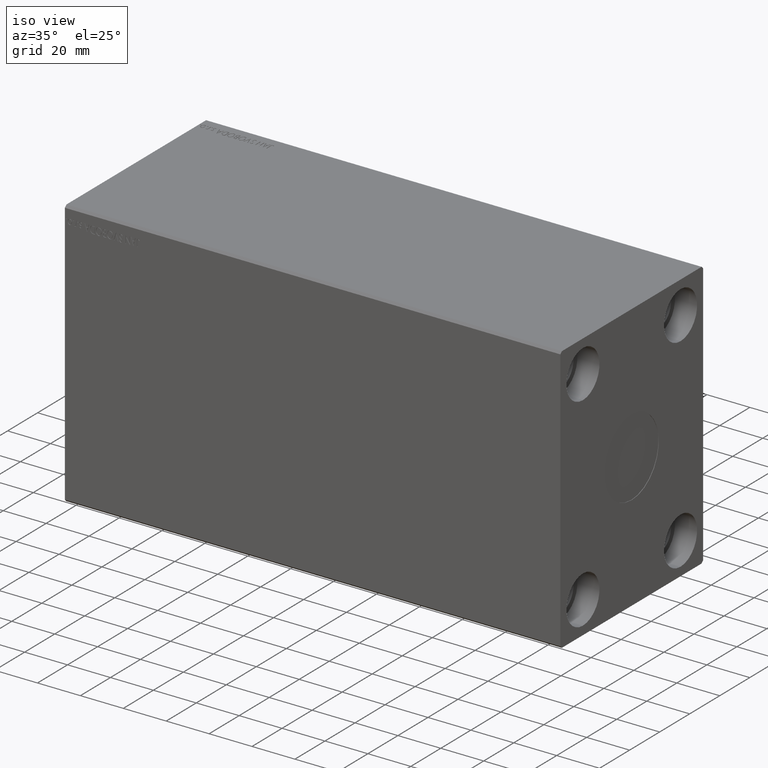
[diagram: clean part render]
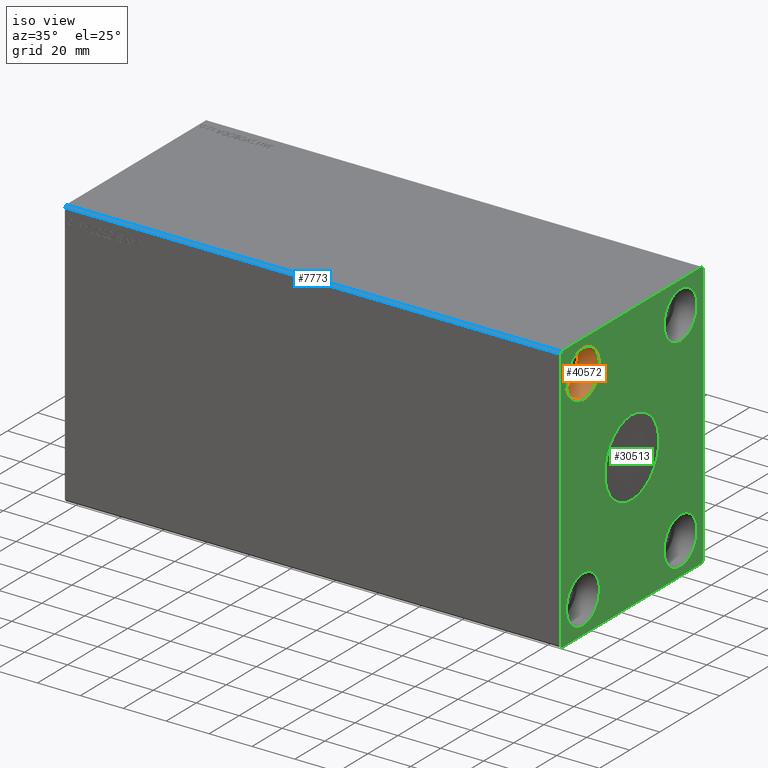
[diagram: same view with three faces highlighted in distinct colors, each labeled with its STEP entity id]
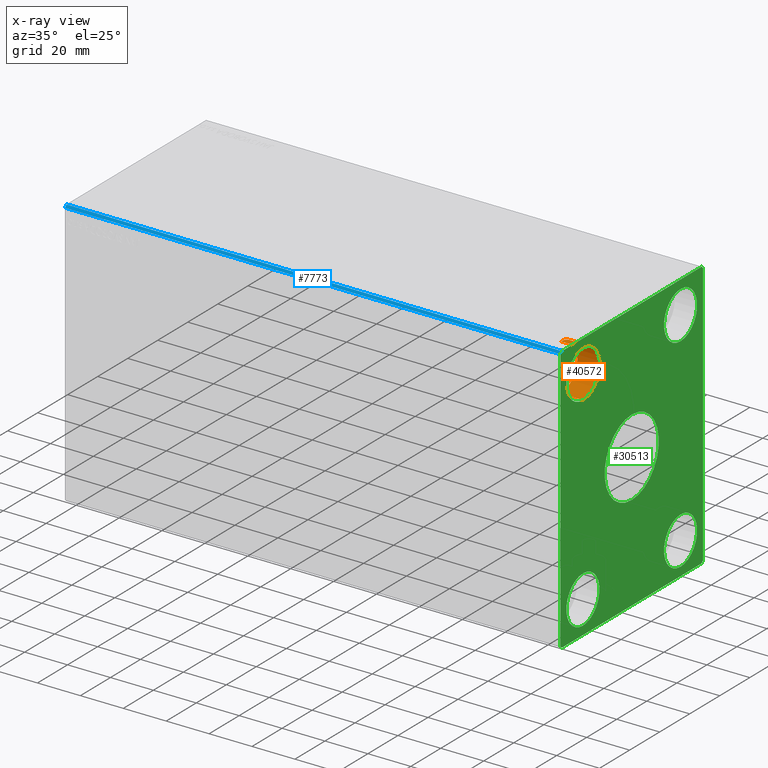
[diagram: x-ray of the same camera — body ghosted, the three highlighted faces saturated]
A machine part, iso view with three faces highlighted in distinct colors.
The next image is the same camera in x-ray (body ghosted, the three faces saturated) — at least one of them is partly hidden behind the body in this view.
Their STEP definitions:

[orange] entity #40572 — the highlighted cylindrical surface (edge-blend (fillet) strip) has radius 11 mm, axis along (1, -0, -0).
#1955 = CARTESIAN_POINT ( 'NONE',  ( 220.6700000000000159, -32.50000000000000000, 47.50000000000000000 ) ) ;
#4401 = FACE_OUTER_BOUND ( 'NONE', #6101, .T. ) ;
#4961 = DIRECTION ( 'NONE',  ( 0.000000000000000000, 0.000000000000000000, 1.000000000000000000 ) ) ;
#6101 = EDGE_LOOP ( 'NONE', ( #29551, #19099, #8860, #25247 ) ) ;
#6989 = EDGE_CURVE ( 'NONE', #38404, #13870, #34838, .T. ) ;
#7012 = VECTOR ( 'NONE', #30645, 1000.000000000000000 ) ;
#7655 = EDGE_CURVE ( 'NONE', #16951, #13870, #16601, .T. ) ;
#8728 = LINE ( 'NONE', #21830, #30640 ) ;
#8860 = ORIENTED_EDGE ( 'NONE', *, *, #6989, .T. ) ;
#10311 = CARTESIAN_POINT ( 'NONE',  ( 231.0000000000000000, -32.50000000000000000, 58.50000000000000000 ) ) ;
#12753 = CARTESIAN_POINT ( 'NONE',  ( 220.6700000000000159, -32.50000000000000000, 47.50000000000000000 ) ) ;
#13162 = DIRECTION ( 'NONE',  ( 0.000000000000000000, 0.000000000000000000, 1.000000000000000000 ) ) ;
#13870 = VERTEX_POINT ( 'NONE', #18405 ) ;
#16601 = CIRCLE ( 'NONE', #17323, 10.99999999999999645 ) ;
#16951 = VERTEX_POINT ( 'NONE', #10311 ) ;
#17323 = AXIS2_PLACEMENT_3D ( 'NONE', #20658, #33768, #13162 ) ;
#18405 = CARTESIAN_POINT ( 'NONE',  ( 231.0000000000000000, -32.50000000000000000, 36.50000000000000711 ) ) ;
#19099 = ORIENTED_EDGE ( 'NONE', *, *, #39743, .T. ) ;
#20658 = CARTESIAN_POINT ( 'NONE',  ( 231.0000000000000000, -32.50000000000000000, 47.50000000000000000 ) ) ;
#21830 = CARTESIAN_POINT ( 'NONE',  ( 220.6700000000000159, -32.50000000000000000, 58.50000000000000000 ) ) ;
#24839 = EDGE_CURVE ( 'NONE', #39499, #16951, #8728, .T. ) ;
#25247 = ORIENTED_EDGE ( 'NONE', *, *, #7655, .F. ) ;
#25477 = DIRECTION ( 'NONE',  ( 1.000000000000000000, -0.000000000000000000, -0.000000000000000000 ) ) ;
#28450 = DIRECTION ( 'NONE',  ( 1.000000000000000000, -0.000000000000000000, -0.000000000000000000 ) ) ;
#29467 = CARTESIAN_POINT ( 'NONE',  ( 220.6700000000000159, -32.50000000000000000, 58.50000000000000000 ) ) ;
#29551 = ORIENTED_EDGE ( 'NONE', *, *, #24839, .F. ) ;
#29641 = CARTESIAN_POINT ( 'NONE',  ( 220.6700000000000159, -32.50000000000000000, 36.50000000000000711 ) ) ;
#30640 = VECTOR ( 'NONE', #25477, 1000.000000000000000 ) ;
#30645 = DIRECTION ( 'NONE',  ( 1.000000000000000000, -0.000000000000000000, -0.000000000000000000 ) ) ;
#30781 = AXIS2_PLACEMENT_3D ( 'NONE', #1955, #34606, #4961 ) ;
#33417 = CARTESIAN_POINT ( 'NONE',  ( 220.6700000000000159, -32.50000000000000000, 36.50000000000000711 ) ) ;
#33545 = CIRCLE ( 'NONE', #30781, 10.99999999999999645 ) ;
#33768 = DIRECTION ( 'NONE',  ( -1.000000000000000000, -0.000000000000000000, -0.000000000000000000 ) ) ;
#34606 = DIRECTION ( 'NONE',  ( -1.000000000000000000, -0.000000000000000000, -0.000000000000000000 ) ) ;
#34838 = LINE ( 'NONE', #29641, #7012 ) ;
#38404 = VERTEX_POINT ( 'NONE', #33417 ) ;
#39499 = VERTEX_POINT ( 'NONE', #29467 ) ;
#39743 = EDGE_CURVE ( 'NONE', #39499, #38404, #33545, .T. ) ;
#40486 = CYLINDRICAL_SURFACE ( 'NONE', #41802, 10.99999999999999645 ) ;
#40572 = ADVANCED_FACE ( 'NONE', ( #4401 ), #40486, .F. ) ;
#41802 = AXIS2_PLACEMENT_3D ( 'NONE', #12753, #28450, #42394 ) ;
#42394 = DIRECTION ( 'NONE',  ( 0.000000000000000000, 0.000000000000000000, -1.000000000000000000 ) ) ;

[blue] entity #7773 — the highlighted planar face has unit normal (0, 0.7071, -0.7071).
#422 = EDGE_CURVE ( 'NONE', #6410, #38373, #34274, .T. ) ;
#430 = VECTOR ( 'NONE', #19235, 1000.000000000000114 ) ;
#498 = VECTOR ( 'NONE', #38921, 1000.000000000000114 ) ;
#1244 = VERTEX_POINT ( 'NONE', #40348 ) ;
#1615 = DIRECTION ( 'NONE',  ( -1.000000000000000000, -0.000000000000000000, -0.000000000000000000 ) ) ;
#2185 = CARTESIAN_POINT ( 'NONE',  ( 231.0000000000000000, -46.50000000000001421, 62.49999999999997868 ) ) ;
#3962 = DIRECTION ( 'NONE',  ( -1.000000000000000000, -0.000000000000000000, -0.000000000000000000 ) ) ;
#4667 = ORIENTED_EDGE ( 'NONE', *, *, #12394, .T. ) ;
#6410 = VERTEX_POINT ( 'NONE', #28905 ) ;
#7773 = ADVANCED_FACE ( 'NONE', ( #25380 ), #31620, .F. ) ;
#8863 = ORIENTED_EDGE ( 'NONE', *, *, #32356, .T. ) ;
#9779 = EDGE_LOOP ( 'NONE', ( #8863, #34291, #34533, #4667 ) ) ;
#12394 = EDGE_CURVE ( 'NONE', #42235, #1244, #39627, .T. ) ;
#12692 = DIRECTION ( 'NONE',  ( 0.000000000000000000, 0.7071067811865474617, 0.7071067811865474617 ) ) ;
#19235 = DIRECTION ( 'NONE',  ( 0.000000000000000000, -0.7071067811865474617, -0.7071067811865474617 ) ) ;
#19865 = CARTESIAN_POINT ( 'NONE',  ( 231.0000000000000000, -46.50000000000001421, 62.49999999999997868 ) ) ;
#23471 = AXIS2_PLACEMENT_3D ( 'NONE', #2185, #35459, #12692 ) ;
#23568 = VECTOR ( 'NONE', #3962, 1000.000000000000000 ) ;
#25380 = FACE_OUTER_BOUND ( 'NONE', #9779, .T. ) ;
#25685 = LINE ( 'NONE', #31722, #430 ) ;
#28632 = LINE ( 'NONE', #29463, #498 ) ;
#28905 = CARTESIAN_POINT ( 'NONE',  ( 231.0000000000000000, -47.50000000000001421, 61.49999999999997868 ) ) ;
#29463 = CARTESIAN_POINT ( 'NONE',  ( 0.000000000000000000, -46.50000000000001421, 62.49999999999997868 ) ) ;
#29669 = EDGE_CURVE ( 'NONE', #42235, #6410, #25685, .T. ) ;
#29989 = CARTESIAN_POINT ( 'NONE',  ( 231.0000000000000000, -46.50000000000001421, 62.49999999999997868 ) ) ;
#30864 = VECTOR ( 'NONE', #1615, 1000.000000000000000 ) ;
#31048 = CARTESIAN_POINT ( 'NONE',  ( 231.0000000000000000, -47.50000000000001421, 61.49999999999997868 ) ) ;
#31620 = PLANE ( 'NONE',  #23471 ) ;
#31722 = CARTESIAN_POINT ( 'NONE',  ( 231.0000000000000000, -46.50000000000001421, 62.49999999999997868 ) ) ;
#32356 = EDGE_CURVE ( 'NONE', #1244, #38373, #28632, .T. ) ;
#34053 = CARTESIAN_POINT ( 'NONE',  ( 0.000000000000000000, -47.50000000000001421, 61.49999999999997868 ) ) ;
#34274 = LINE ( 'NONE', #31048, #30864 ) ;
#34291 = ORIENTED_EDGE ( 'NONE', *, *, #422, .F. ) ;
#34533 = ORIENTED_EDGE ( 'NONE', *, *, #29669, .F. ) ;
#35459 = DIRECTION ( 'NONE',  ( 0.000000000000000000, 0.7071067811865475727, -0.7071067811865475727 ) ) ;
#38373 = VERTEX_POINT ( 'NONE', #34053 ) ;
#38921 = DIRECTION ( 'NONE',  ( 0.000000000000000000, -0.7071067811865474617, -0.7071067811865474617 ) ) ;
#39627 = LINE ( 'NONE', #19865, #23568 ) ;
#40348 = CARTESIAN_POINT ( 'NONE',  ( 0.000000000000000000, -46.50000000000001421, 62.49999999999997868 ) ) ;
#42235 = VERTEX_POINT ( 'NONE', #29989 ) ;

[green] entity #30513 — the highlighted planar face has unit normal (1, 0, 0).
#13 = CARTESIAN_POINT ( 'NONE',  ( 231.0000000000000000, 32.50000000000000000, 58.50000000000000000 ) ) ;
#34 = DIRECTION ( 'NONE',  ( 1.000000000000000000, -0.000000000000000000, -0.000000000000000000 ) ) ;
#430 = VECTOR ( 'NONE', #19235, 1000.000000000000114 ) ;
#614 = CARTESIAN_POINT ( 'NONE',  ( 231.0000000000000000, 2.204364238465235428E-15, 18.00000000000000000 ) ) ;
#1193 = VERTEX_POINT ( 'NONE', #13303 ) ;
#1254 = VERTEX_POINT ( 'NONE', #614 ) ;
#1930 = FACE_BOUND ( 'NONE', #29256, .T. ) ;
#2014 = CARTESIAN_POINT ( 'NONE',  ( 231.0000000000000000, 46.50000000000000000, -62.50000000000000000 ) ) ;
#2082 = EDGE_CURVE ( 'NONE', #12648, #6062, #15533, .T. ) ;
#2118 = CIRCLE ( 'NONE', #32285, 10.99999999999999645 ) ;
#2206 = EDGE_CURVE ( 'NONE', #30310, #19572, #2118, .T. ) ;
#2326 = EDGE_CURVE ( 'NONE', #30523, #28350, #16489, .T. ) ;
#2552 = DIRECTION ( 'NONE',  ( 0.000000000000000000, -1.000000000000000000, -7.461176240760460157E-17 ) ) ;
#2669 = ORIENTED_EDGE ( 'NONE', *, *, #7655, .T. ) ;
#2732 = DIRECTION ( 'NONE',  ( -1.000000000000000000, -0.000000000000000000, -0.000000000000000000 ) ) ;
#2921 = VERTEX_POINT ( 'NONE', #2014 ) ;
#3320 = DIRECTION ( 'NONE',  ( 0.000000000000000000, 0.7071067811865574537, 0.7071067811865376918 ) ) ;
#3404 = LINE ( 'NONE', #7053, #29784 ) ;
#3409 = ORIENTED_EDGE ( 'NONE', *, *, #34976, .T. ) ;
#3866 = AXIS2_PLACEMENT_3D ( 'NONE', #12336, #31458, #18360 ) ;
#5061 = EDGE_LOOP ( 'NONE', ( #19895, #35618, #35006, #20157, #35440, #10239, #10986, #20146 ) ) ;
#5570 = FACE_BOUND ( 'NONE', #26512, .T. ) ;
#5842 = ORIENTED_EDGE ( 'NONE', *, *, #2206, .F. ) ;
#6006 = VERTEX_POINT ( 'NONE', #18244 ) ;
#6062 = VERTEX_POINT ( 'NONE', #11592 ) ;
#6156 = CARTESIAN_POINT ( 'NONE',  ( 231.0000000000000000, -32.50000000000000000, 47.50000000000000000 ) ) ;
#6410 = VERTEX_POINT ( 'NONE', #28905 ) ;
#6581 = CARTESIAN_POINT ( 'NONE',  ( 231.0000000000000000, 32.50000000000000000, -47.50000000000000000 ) ) ;
#7053 = CARTESIAN_POINT ( 'NONE',  ( 231.0000000000000000, -47.50000000000001421, 61.49999999999997868 ) ) ;
#7655 = EDGE_CURVE ( 'NONE', #16951, #13870, #16601, .T. ) ;
#8062 = CIRCLE ( 'NONE', #14225, 10.99999999999999645 ) ;
#8303 = LINE ( 'NONE', #14538, #23771 ) ;
#8350 = CARTESIAN_POINT ( 'NONE',  ( 231.0000000000000000, 32.50000000000000000, -58.50000000000000000 ) ) ;
#8675 = CARTESIAN_POINT ( 'NONE',  ( 231.0000000000000000, 46.50000000000000000, 62.49999999999998579 ) ) ;
#9169 = ORIENTED_EDGE ( 'NONE', *, *, #2326, .T. ) ;
#9239 = CIRCLE ( 'NONE', #33244, 18.00000000000000000 ) ;
#9703 = CARTESIAN_POINT ( 'NONE',  ( 231.0000000000000000, -47.49999999999999289, -61.50000000000001421 ) ) ;
#9880 = VECTOR ( 'NONE', #2552, 1000.000000000000000 ) ;
#10239 = ORIENTED_EDGE ( 'NONE', *, *, #30962, .T. ) ;
#10311 = CARTESIAN_POINT ( 'NONE',  ( 231.0000000000000000, -32.50000000000000000, 58.50000000000000000 ) ) ;
#10921 = ORIENTED_EDGE ( 'NONE', *, *, #20073, .F. ) ;
#10986 = ORIENTED_EDGE ( 'NONE', *, *, #11645, .T. ) ;
#11592 = CARTESIAN_POINT ( 'NONE',  ( 231.0000000000000000, -46.50000000000000000, -62.50000000000001421 ) ) ;
#11603 = FACE_BOUND ( 'NONE', #23932, .T. ) ;
#11612 = DIRECTION ( 'NONE',  ( 0.000000000000000000, 0.000000000000000000, 1.000000000000000000 ) ) ;
#11645 = EDGE_CURVE ( 'NONE', #2921, #6006, #19638, .T. ) ;
#11714 = AXIS2_PLACEMENT_3D ( 'NONE', #6581, #2732, #16261 ) ;
#11937 = VERTEX_POINT ( 'NONE', #27091 ) ;
#12336 = CARTESIAN_POINT ( 'NONE',  ( 231.0000000000000000, 0.000000000000000000, 0.000000000000000000 ) ) ;
#12648 = VERTEX_POINT ( 'NONE', #42375 ) ;
#12723 = DIRECTION ( 'NONE',  ( 0.000000000000000000, 0.7071067811865451302, -0.7071067811865500152 ) ) ;
#13145 = DIRECTION ( 'NONE',  ( 1.000000000000000000, -0.000000000000000000, -0.000000000000000000 ) ) ;
#13162 = DIRECTION ( 'NONE',  ( 0.000000000000000000, 0.000000000000000000, 1.000000000000000000 ) ) ;
#13303 = CARTESIAN_POINT ( 'NONE',  ( 231.0000000000000000, -32.50000000000000000, -36.50000000000000711 ) ) ;
#13661 = CARTESIAN_POINT ( 'NONE',  ( 231.0000000000000000, -46.50000000000000000, -62.50000000000001421 ) ) ;
#13870 = VERTEX_POINT ( 'NONE', #18405 ) ;
#14081 = AXIS2_PLACEMENT_3D ( 'NONE', #14219, #41073, #24100 ) ;
#14219 = CARTESIAN_POINT ( 'NONE',  ( 231.0000000000000000, -32.50000000000000000, -47.50000000000000000 ) ) ;
#14225 = AXIS2_PLACEMENT_3D ( 'NONE', #6156, #16046, #26131 ) ;
#14304 = ORIENTED_EDGE ( 'NONE', *, *, #38487, .F. ) ;
#14538 = CARTESIAN_POINT ( 'NONE',  ( 231.0000000000000000, 47.50000000000000000, 61.49999999999998579 ) ) ;
#15526 = VERTEX_POINT ( 'NONE', #41395 ) ;
#15533 = LINE ( 'NONE', #9703, #21978 ) ;
#15777 = DIRECTION ( 'NONE',  ( 1.000000000000000000, -0.000000000000000000, -0.000000000000000000 ) ) ;
#15800 = DIRECTION ( 'NONE',  ( 0.000000000000000000, 0.000000000000000000, -1.000000000000000000 ) ) ;
#15988 = VERTEX_POINT ( 'NONE', #21997 ) ;
#16043 = ORIENTED_EDGE ( 'NONE', *, *, #37396, .F. ) ;
#16046 = DIRECTION ( 'NONE',  ( -1.000000000000000000, -0.000000000000000000, -0.000000000000000000 ) ) ;
#16256 = VECTOR ( 'NONE', #36415, 1000.000000000000000 ) ;
#16261 = DIRECTION ( 'NONE',  ( 0.000000000000000000, 0.000000000000000000, 1.000000000000000000 ) ) ;
#16467 = VERTEX_POINT ( 'NONE', #8675 ) ;
#16489 = CIRCLE ( 'NONE', #11714, 10.99999999999999645 ) ;
#16601 = CIRCLE ( 'NONE', #17323, 10.99999999999999645 ) ;
#16678 = ORIENTED_EDGE ( 'NONE', *, *, #21337, .F. ) ;
#16951 = VERTEX_POINT ( 'NONE', #10311 ) ;
#17045 = DIRECTION ( 'NONE',  ( 0.000000000000000000, -1.128275431529630729E-16, 1.000000000000000000 ) ) ;
#17173 = EDGE_CURVE ( 'NONE', #16467, #42235, #21887, .T. ) ;
#17323 = AXIS2_PLACEMENT_3D ( 'NONE', #20658, #33768, #13162 ) ;
#17417 = DIRECTION ( 'NONE',  ( -1.000000000000000000, -0.000000000000000000, -0.000000000000000000 ) ) ;
#17471 = CARTESIAN_POINT ( 'NONE',  ( 231.0000000000000000, 47.50000000000001421, -61.50000000000001421 ) ) ;
#17891 = LINE ( 'NONE', #17471, #31354 ) ;
#18244 = CARTESIAN_POINT ( 'NONE',  ( 231.0000000000000000, 47.50000000000001421, -61.50000000000001421 ) ) ;
#18360 = DIRECTION ( 'NONE',  ( 0.000000000000000000, 0.000000000000000000, -1.000000000000000000 ) ) ;
#18382 = CIRCLE ( 'NONE', #19744, 10.99999999999999645 ) ;
#18405 = CARTESIAN_POINT ( 'NONE',  ( 231.0000000000000000, -32.50000000000000000, 36.50000000000000711 ) ) ;
#19026 = CARTESIAN_POINT ( 'NONE',  ( 231.0000000000000000, 0.000000000000000000, 0.000000000000000000 ) ) ;
#19082 = EDGE_CURVE ( 'NONE', #6410, #12648, #3404, .T. ) ;
#19235 = DIRECTION ( 'NONE',  ( 0.000000000000000000, -0.7071067811865474617, -0.7071067811865474617 ) ) ;
#19412 = ORIENTED_EDGE ( 'NONE', *, *, #25155, .F. ) ;
#19572 = VERTEX_POINT ( 'NONE', #40841 ) ;
#19574 = CARTESIAN_POINT ( 'NONE',  ( 231.0000000000000000, -32.50000000000000000, -47.50000000000000000 ) ) ;
#19638 = LINE ( 'NONE', #32748, #29058 ) ;
#19744 = AXIS2_PLACEMENT_3D ( 'NONE', #33731, #17417, #11612 ) ;
#19895 = ORIENTED_EDGE ( 'NONE', *, *, #29514, .T. ) ;
#20073 = EDGE_CURVE ( 'NONE', #15988, #1254, #9239, .T. ) ;
#20146 = ORIENTED_EDGE ( 'NONE', *, *, #27001, .T. ) ;
#20157 = ORIENTED_EDGE ( 'NONE', *, *, #19082, .T. ) ;
#20569 = DIRECTION ( 'NONE',  ( 0.000000000000000000, 1.692413147294445970E-16, -1.000000000000000000 ) ) ;
#20658 = CARTESIAN_POINT ( 'NONE',  ( 231.0000000000000000, -32.50000000000000000, 47.50000000000000000 ) ) ;
#20727 = LINE ( 'NONE', #13661, #16256 ) ;
#21337 = EDGE_CURVE ( 'NONE', #1193, #11937, #26437, .T. ) ;
#21410 = DIRECTION ( 'NONE',  ( 0.000000000000000000, -0.7071067811865474617, 0.7071067811865474617 ) ) ;
#21887 = LINE ( 'NONE', #42069, #9880 ) ;
#21978 = VECTOR ( 'NONE', #12723, 1000.000000000000114 ) ;
#21997 = CARTESIAN_POINT ( 'NONE',  ( 231.0000000000000000, 0.000000000000000000, -18.00000000000000000 ) ) ;
#23013 = EDGE_LOOP ( 'NONE', ( #14304, #5842 ) ) ;
#23771 = VECTOR ( 'NONE', #21410, 1000.000000000000114 ) ;
#23774 = CIRCLE ( 'NONE', #3866, 18.00000000000000000 ) ;
#23855 = AXIS2_PLACEMENT_3D ( 'NONE', #19574, #34, #42146 ) ;
#23932 = EDGE_LOOP ( 'NONE', ( #3409, #2669 ) ) ;
#24100 = DIRECTION ( 'NONE',  ( 0.000000000000000000, 0.000000000000000000, -1.000000000000000000 ) ) ;
#25016 = ORIENTED_EDGE ( 'NONE', *, *, #36209, .T. ) ;
#25155 = EDGE_CURVE ( 'NONE', #1254, #15988, #23774, .T. ) ;
#25192 = AXIS2_PLACEMENT_3D ( 'NONE', #41242, #28345, #38637 ) ;
#25685 = LINE ( 'NONE', #31722, #430 ) ;
#25898 = CIRCLE ( 'NONE', #23855, 10.99999999999999645 ) ;
#26131 = DIRECTION ( 'NONE',  ( 0.000000000000000000, 0.000000000000000000, 1.000000000000000000 ) ) ;
#26437 = CIRCLE ( 'NONE', #14081, 10.99999999999999645 ) ;
#26512 = EDGE_LOOP ( 'NONE', ( #10921, #19412 ) ) ;
#27001 = EDGE_CURVE ( 'NONE', #6006, #15526, #17891, .T. ) ;
#27091 = CARTESIAN_POINT ( 'NONE',  ( 231.0000000000000000, -32.50000000000000000, -58.50000000000000000 ) ) ;
#27919 = FACE_OUTER_BOUND ( 'NONE', #5061, .T. ) ;
#28131 = FACE_BOUND ( 'NONE', #34452, .T. ) ;
#28345 = DIRECTION ( 'NONE',  ( 1.000000000000000000, 0.000000000000000000, 0.000000000000000000 ) ) ;
#28350 = VERTEX_POINT ( 'NONE', #8350 ) ;
#28905 = CARTESIAN_POINT ( 'NONE',  ( 231.0000000000000000, -47.50000000000001421, 61.49999999999997868 ) ) ;
#29058 = VECTOR ( 'NONE', #3320, 999.9999999999998863 ) ;
#29256 = EDGE_LOOP ( 'NONE', ( #16043, #16678 ) ) ;
#29514 = EDGE_CURVE ( 'NONE', #15526, #16467, #8303, .T. ) ;
#29669 = EDGE_CURVE ( 'NONE', #42235, #6410, #25685, .T. ) ;
#29678 = CARTESIAN_POINT ( 'NONE',  ( 231.0000000000000000, 32.50000000000000000, 47.50000000000000000 ) ) ;
#29784 = VECTOR ( 'NONE', #20569, 1000.000000000000000 ) ;
#29989 = CARTESIAN_POINT ( 'NONE',  ( 231.0000000000000000, -46.50000000000001421, 62.49999999999997868 ) ) ;
#30310 = VERTEX_POINT ( 'NONE', #13 ) ;
#30513 = ADVANCED_FACE ( 'NONE', ( #5570, #11603, #28131, #27919, #1930, #31357 ), #38006, .T. ) ;
#30523 = VERTEX_POINT ( 'NONE', #34798 ) ;
#30962 = EDGE_CURVE ( 'NONE', #6062, #2921, #20727, .T. ) ;
#31354 = VECTOR ( 'NONE', #17045, 1000.000000000000000 ) ;
#31357 = FACE_BOUND ( 'NONE', #23013, .T. ) ;
#31442 = AXIS2_PLACEMENT_3D ( 'NONE', #42402, #15777, #32107 ) ;
#31458 = DIRECTION ( 'NONE',  ( 1.000000000000000000, 0.000000000000000000, 0.000000000000000000 ) ) ;
#31722 = CARTESIAN_POINT ( 'NONE',  ( 231.0000000000000000, -46.50000000000001421, 62.49999999999997868 ) ) ;
#32107 = DIRECTION ( 'NONE',  ( 0.000000000000000000, 0.000000000000000000, -1.000000000000000000 ) ) ;
#32285 = AXIS2_PLACEMENT_3D ( 'NONE', #29678, #13145, #40189 ) ;
#32748 = CARTESIAN_POINT ( 'NONE',  ( 231.0000000000000000, 46.50000000000000000, -62.50000000000000000 ) ) ;
#33244 = AXIS2_PLACEMENT_3D ( 'NONE', #19026, #35750, #15800 ) ;
#33731 = CARTESIAN_POINT ( 'NONE',  ( 231.0000000000000000, 32.50000000000000000, -47.50000000000000000 ) ) ;
#33768 = DIRECTION ( 'NONE',  ( -1.000000000000000000, -0.000000000000000000, -0.000000000000000000 ) ) ;
#34452 = EDGE_LOOP ( 'NONE', ( #25016, #9169 ) ) ;
#34798 = CARTESIAN_POINT ( 'NONE',  ( 231.0000000000000000, 32.50000000000000000, -36.50000000000000711 ) ) ;
#34976 = EDGE_CURVE ( 'NONE', #13870, #16951, #8062, .T. ) ;
#35006 = ORIENTED_EDGE ( 'NONE', *, *, #29669, .T. ) ;
#35440 = ORIENTED_EDGE ( 'NONE', *, *, #2082, .T. ) ;
#35618 = ORIENTED_EDGE ( 'NONE', *, *, #17173, .T. ) ;
#35750 = DIRECTION ( 'NONE',  ( 1.000000000000000000, 0.000000000000000000, 0.000000000000000000 ) ) ;
#36209 = EDGE_CURVE ( 'NONE', #28350, #30523, #18382, .T. ) ;
#36415 = DIRECTION ( 'NONE',  ( 0.000000000000000000, 1.000000000000000000, 1.492235248152092278E-16 ) ) ;
#37396 = EDGE_CURVE ( 'NONE', #11937, #1193, #25898, .T. ) ;
#38006 = PLANE ( 'NONE',  #25192 ) ;
#38487 = EDGE_CURVE ( 'NONE', #19572, #30310, #42406, .T. ) ;
#38637 = DIRECTION ( 'NONE',  ( 0.000000000000000000, 0.000000000000000000, -1.000000000000000000 ) ) ;
#40189 = DIRECTION ( 'NONE',  ( 0.000000000000000000, 0.000000000000000000, -1.000000000000000000 ) ) ;
#40841 = CARTESIAN_POINT ( 'NONE',  ( 231.0000000000000000, 32.50000000000000000, 36.50000000000000711 ) ) ;
#41073 = DIRECTION ( 'NONE',  ( 1.000000000000000000, -0.000000000000000000, -0.000000000000000000 ) ) ;
#41242 = CARTESIAN_POINT ( 'NONE',  ( 231.0000000000000000, 0.000000000000000000, 0.000000000000000000 ) ) ;
#41395 = CARTESIAN_POINT ( 'NONE',  ( 231.0000000000000000, 47.50000000000000000, 61.49999999999998579 ) ) ;
#42069 = CARTESIAN_POINT ( 'NONE',  ( 231.0000000000000000, 46.50000000000000000, 62.49999999999998579 ) ) ;
#42146 = DIRECTION ( 'NONE',  ( 0.000000000000000000, 0.000000000000000000, -1.000000000000000000 ) ) ;
#42235 = VERTEX_POINT ( 'NONE', #29989 ) ;
#42375 = CARTESIAN_POINT ( 'NONE',  ( 231.0000000000000000, -47.49999999999999289, -61.50000000000001421 ) ) ;
#42402 = CARTESIAN_POINT ( 'NONE',  ( 231.0000000000000000, 32.50000000000000000, 47.50000000000000000 ) ) ;
#42406 = CIRCLE ( 'NONE', #31442, 10.99999999999999645 ) ;